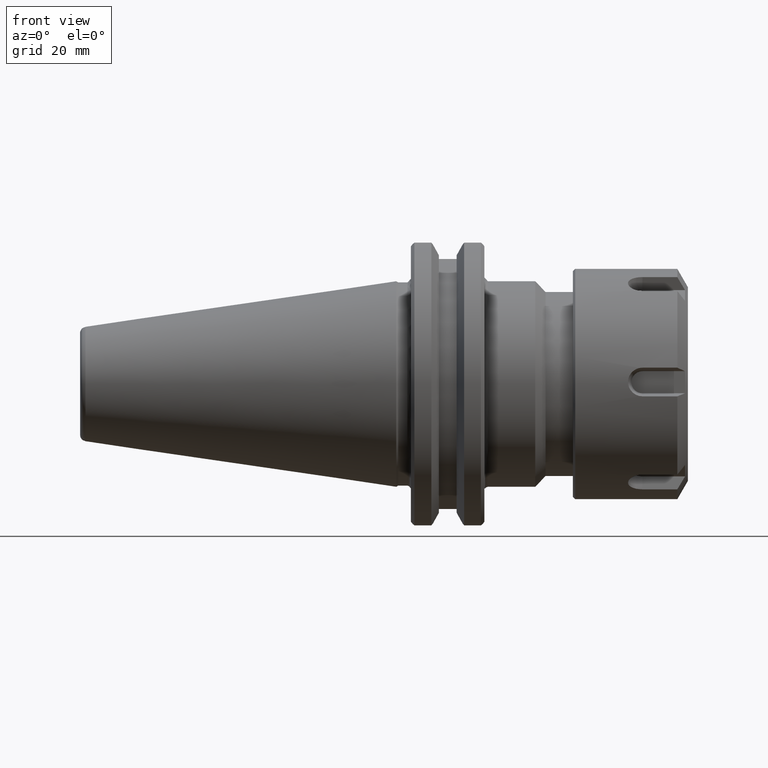
[diagram: clean part render]
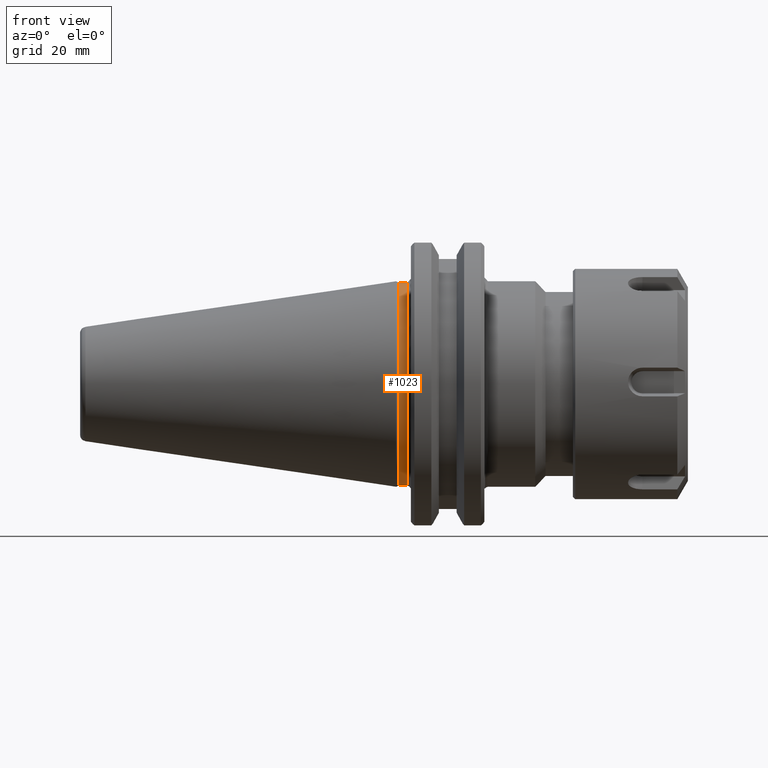
[diagram: same view with one face highlighted and labeled with its STEP entity id]
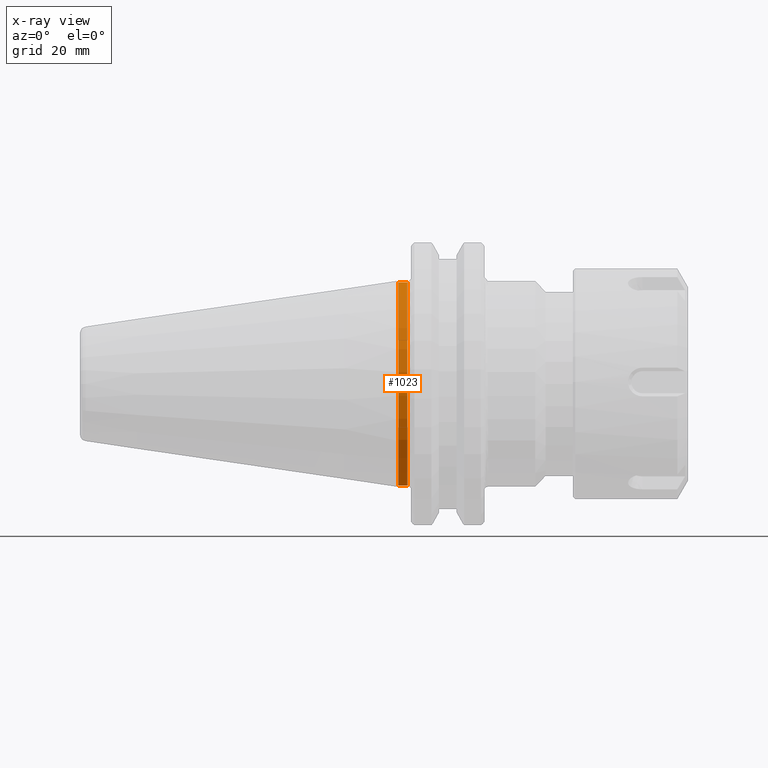
[diagram: x-ray of the same camera — body ghosted, the highlighted face saturated]
A machine part, front view. The second image highlights one B-rep face of the part: STEP entity #1023.
The next image is the same camera in x-ray: the body ghosted, the highlighted face saturated — about 0% of this face is hidden behind the body in this view.
In plain terms, the highlighted cylindrical surface (bore or boss wall) has radius 21.971 mm, axis along (-1, 0, 0).
Its self-contained STEP definition (entity closure, byte-faithful):
#920=CARTESIAN_POINT('',(0.095,0.865,2.118639E-016));
#921=VERTEX_POINT('',#920);
#922=CARTESIAN_POINT('',(0.095,0.0,0.0));
#923=DIRECTION('',(1.0,0.0,0.0));
#924=DIRECTION('',(0.0,-1.0,0.0));
#925=AXIS2_PLACEMENT_3D('',#922,#923,#924);
#926=CIRCLE('',#925,0.865);
#927=EDGE_CURVE('',#921,#921,#926,.T.);
#1004=CARTESIAN_POINT('',(0.071160254037844,0.0,0.0));
#1005=DIRECTION('',(-1.0,0.0,0.0));
#1006=DIRECTION('',(0.0,1.0,0.0));
#1007=AXIS2_PLACEMENT_3D('',#1004,#1005,#1006);
#1008=CYLINDRICAL_SURFACE('',#1007,0.865);
#1009=CARTESIAN_POINT('',(0.017320508075689,0.865,0.0));
#1010=VERTEX_POINT('',#1009);
#1011=CARTESIAN_POINT('',(0.017320508075689,0.0,0.0));
#1012=DIRECTION('',(-1.0,0.0,0.0));
#1013=DIRECTION('',(0.0,1.0,0.0));
#1014=AXIS2_PLACEMENT_3D('',#1011,#1012,#1013);
#1015=CIRCLE('',#1014,0.865);
#1016=EDGE_CURVE('',#1010,#1010,#1015,.T.);
#1017=ORIENTED_EDGE('',*,*,#1016,.F.);
#1018=EDGE_LOOP('',(#1017));
#1019=FACE_OUTER_BOUND('',#1018,.T.);
#1020=ORIENTED_EDGE('',*,*,#927,.F.);
#1021=EDGE_LOOP('',(#1020));
#1022=FACE_BOUND('',#1021,.T.);
#1023=ADVANCED_FACE('',(#1019,#1022),#1008,.T.);